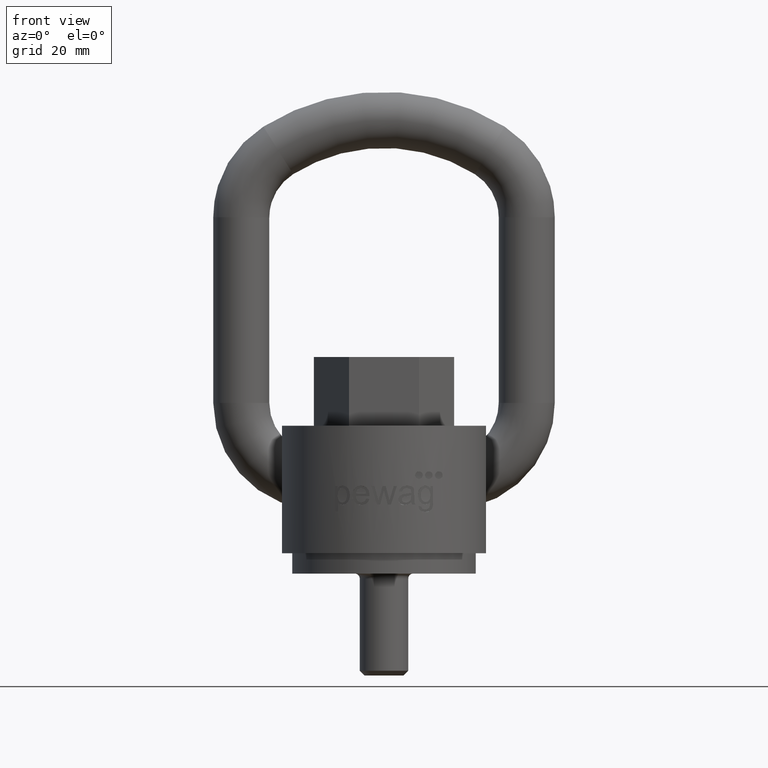
[diagram: clean part render]
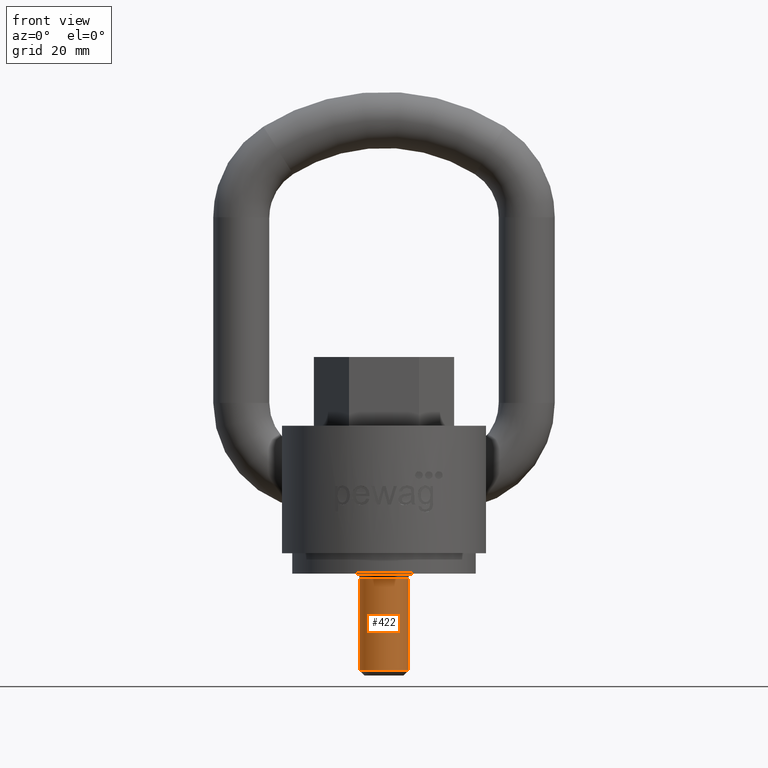
[diagram: same view with one face highlighted and labeled with its STEP entity id]
A machine part, front view. The second image highlights one B-rep face of the part: STEP entity #422.
In plain terms, the highlighted cylindrical surface (bore or boss wall) has radius 4.7625 mm, axis along (0, 0, 1).
Its self-contained STEP definition (entity closure, byte-faithful):
#422=ADVANCED_FACE('',(#581,#582),#531,.T.);
#531=CYLINDRICAL_SURFACE('',#2472,4.7625);
#581=FACE_BOUND('',#656,.T.);
#582=FACE_BOUND('',#657,.T.);
#656=EDGE_LOOP('',(#1286));
#657=EDGE_LOOP('',(#1287));
#1100=CIRCLE('',#2470,4.7625);
#1101=CIRCLE('',#2471,4.7625);
#1286=ORIENTED_EDGE('',*,*,#2052,.T.);
#1287=ORIENTED_EDGE('',*,*,#2053,.T.);
#1826=VERTEX_POINT('',#3895);
#1827=VERTEX_POINT('',#3897);
#2052=EDGE_CURVE('',#1826,#1826,#1100,.T.);
#2053=EDGE_CURVE('',#1827,#1827,#1101,.T.);
#2470=AXIS2_PLACEMENT_3D('',#3894,#2714,#2715);
#2471=AXIS2_PLACEMENT_3D('',#3896,#2716,#2717);
#2472=AXIS2_PLACEMENT_3D('',#3898,#2718,#2719);
#2714=DIRECTION('',(0.,0.,1.));
#2715=DIRECTION('',(-1.,0.,0.));
#2716=DIRECTION('',(0.,0.,-1.));
#2717=DIRECTION('',(-1.,0.,0.));
#2718=DIRECTION('',(0.,0.,1.));
#2719=DIRECTION('',(1.,0.,0.));
#3894=CARTESIAN_POINT('',(0.,0.,-23.0474999999999));
#3895=CARTESIAN_POINT('',(-4.7625,0.,-23.0474999999999));
#3896=CARTESIAN_POINT('',(0.,0.,-4.95249999999993));
#3897=CARTESIAN_POINT('',(-4.7625,0.,-4.95249999999993));
#3898=CARTESIAN_POINT('',(0.,0.,-23.9999999999999));